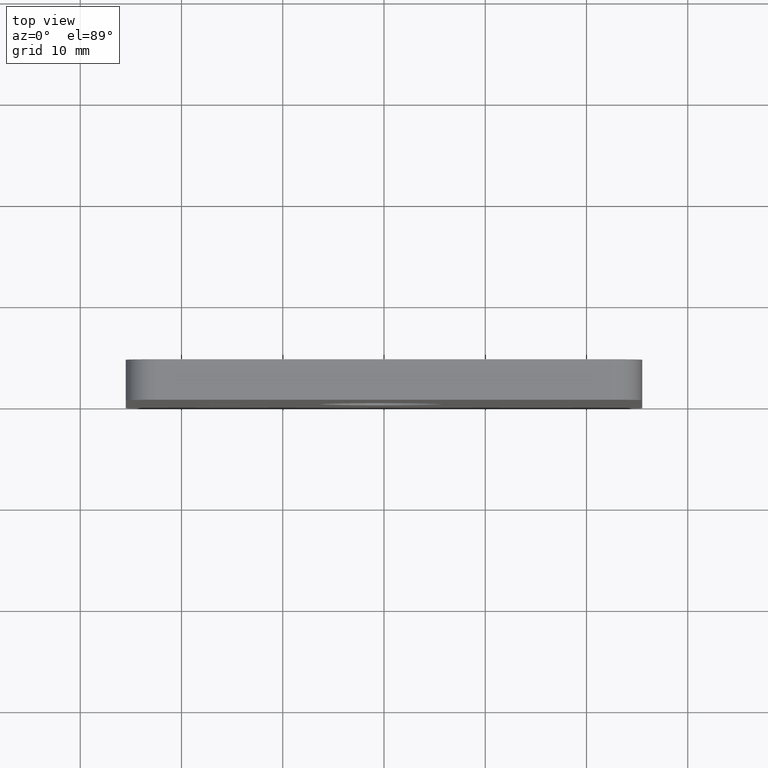
[diagram: clean part render]
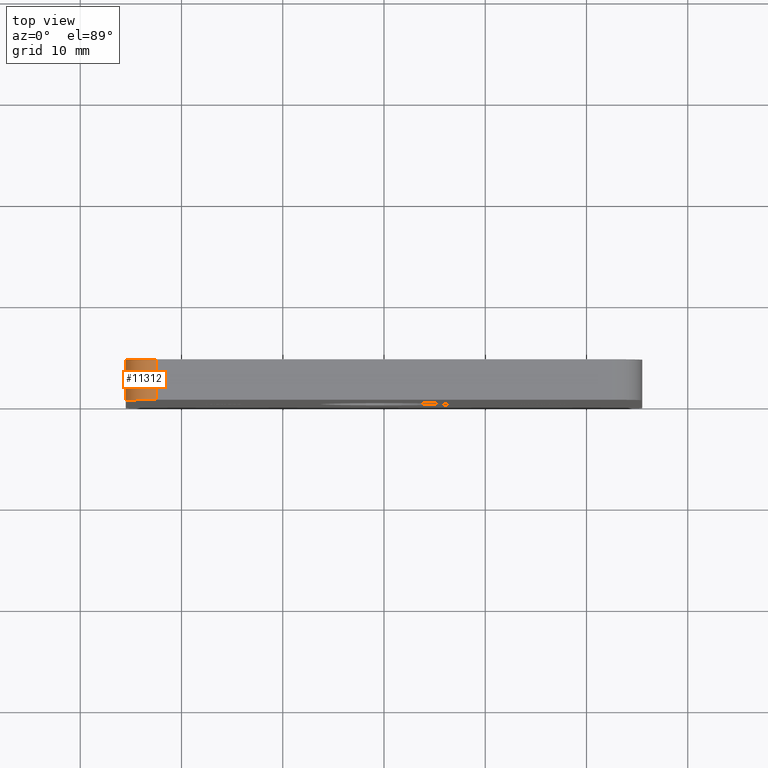
[diagram: same view with one face highlighted and labeled with its STEP entity id]
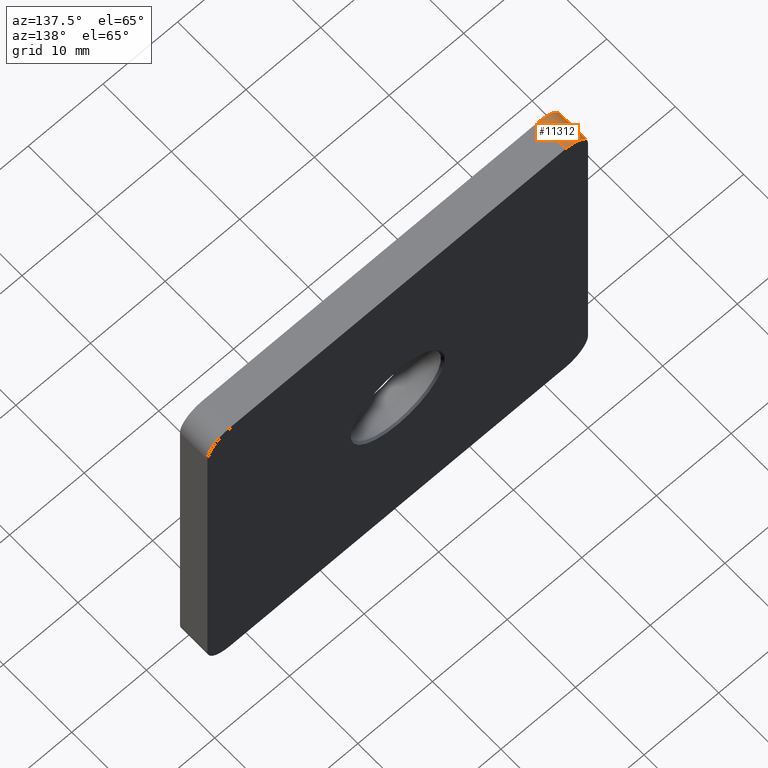
[diagram: same view with one face highlighted and labeled with its STEP entity id]
A machine part, top view. The second image highlights one B-rep face of the part: STEP entity #11312.
A second angle (auxiliary view) of the same face is appended — the face is thin or edge-on in the first view.
In plain terms, the highlighted cylindrical surface (edge-blend (fillet) strip) has radius 3 mm, axis along (0, -1, 0).
Its self-contained STEP definition (entity closure, byte-faithful):
#205 = VECTOR ( 'NONE', #10202, 1000.000000000000000 ) ;
#371 = DIRECTION ( 'NONE',  ( -0.0000000000000000000, -1.000000000000000000, -0.0000000000000000000 ) ) ;
#819 = VECTOR ( 'NONE', #7564, 1000.000000000000000 ) ;
#1165 = CARTESIAN_POINT ( 'NONE',  ( -25.49999999999999600, 4.000000000000000000, 22.49999999999999300 ) ) ;
#1527 = CIRCLE ( 'NONE', #10552, 2.999999999999999100 ) ;
#1651 = AXIS2_PLACEMENT_3D ( 'NONE', #2418, #4963, #9797 ) ;
#2371 = ORIENTED_EDGE ( 'NONE', *, *, #6077, .F. ) ;
#2418 = CARTESIAN_POINT ( 'NONE',  ( -22.49999999999999600, 4.000000000000000000, 22.49999999999999600 ) ) ;
#2982 = VERTEX_POINT ( 'NONE', #6489 ) ;
#3302 = AXIS2_PLACEMENT_3D ( 'NONE', #5307, #371, #7675 ) ;
#3534 = EDGE_CURVE ( 'NONE', #2982, #6649, #4044, .T. ) ;
#3944 = EDGE_LOOP ( 'NONE', ( #8216, #7770, #14667, #2371 ) ) ;
#4044 = LINE ( 'NONE', #1165, #819 ) ;
#4865 = VERTEX_POINT ( 'NONE', #11165 ) ;
#4963 = DIRECTION ( 'NONE',  ( 0.0000000000000000000, -1.000000000000000000, 0.0000000000000000000 ) ) ;
#5307 = CARTESIAN_POINT ( 'NONE',  ( -22.49999999999999600, 0.0000000000000000000, 22.49999999999999600 ) ) ;
#6077 = EDGE_CURVE ( 'NONE', #10056, #4865, #10334, .T. ) ;
#6489 = CARTESIAN_POINT ( 'NONE',  ( -25.49999999999999600, 0.0000000000000000000, 22.49999999999999300 ) ) ;
#6649 = VERTEX_POINT ( 'NONE', #11938 ) ;
#6944 = CARTESIAN_POINT ( 'NONE',  ( -22.49999999999999600, 4.000000000000000000, 25.49999999999999600 ) ) ;
#7564 = DIRECTION ( 'NONE',  ( -0.0000000000000000000, 1.000000000000000000, -0.0000000000000000000 ) ) ;
#7675 = DIRECTION ( 'NONE',  ( 0.0000000000000000000, 0.0000000000000000000, 1.000000000000000000 ) ) ;
#7770 = ORIENTED_EDGE ( 'NONE', *, *, #3534, .F. ) ;
#8009 = CARTESIAN_POINT ( 'NONE',  ( -22.49999999999999600, 4.000000000000000000, 22.49999999999999600 ) ) ;
#8216 = ORIENTED_EDGE ( 'NONE', *, *, #8908, .F. ) ;
#8908 = EDGE_CURVE ( 'NONE', #6649, #10056, #1527, .T. ) ;
#9797 = DIRECTION ( 'NONE',  ( 0.0000000000000000000, 0.0000000000000000000, -1.000000000000000000 ) ) ;
#10056 = VERTEX_POINT ( 'NONE', #6944 ) ;
#10202 = DIRECTION ( 'NONE',  ( 0.0000000000000000000, -1.000000000000000000, 0.0000000000000000000 ) ) ;
#10334 = LINE ( 'NONE', #11178, #205 ) ;
#10552 = AXIS2_PLACEMENT_3D ( 'NONE', #8009, #14105, #15508 ) ;
#11051 = FACE_OUTER_BOUND ( 'NONE', #3944, .T. ) ;
#11165 = CARTESIAN_POINT ( 'NONE',  ( -22.49999999999999600, 0.0000000000000000000, 25.49999999999999600 ) ) ;
#11178 = CARTESIAN_POINT ( 'NONE',  ( -22.49999999999999600, 4.000000000000000000, 25.49999999999999600 ) ) ;
#11312 = ADVANCED_FACE ( 'NONE', ( #11051 ), #13932, .T. ) ;
#11938 = CARTESIAN_POINT ( 'NONE',  ( -25.49999999999999600, 4.000000000000000000, 22.49999999999999300 ) ) ;
#13221 = EDGE_CURVE ( 'NONE', #4865, #2982, #13376, .T. ) ;
#13376 = CIRCLE ( 'NONE', #3302, 2.999999999999999100 ) ;
#13932 = CYLINDRICAL_SURFACE ( 'NONE', #1651, 2.999999999999999100 ) ;
#14105 = DIRECTION ( 'NONE',  ( 0.0000000000000000000, 1.000000000000000000, 0.0000000000000000000 ) ) ;
#14667 = ORIENTED_EDGE ( 'NONE', *, *, #13221, .F. ) ;
#15508 = DIRECTION ( 'NONE',  ( 0.0000000000000000000, 0.0000000000000000000, 1.000000000000000000 ) ) ;